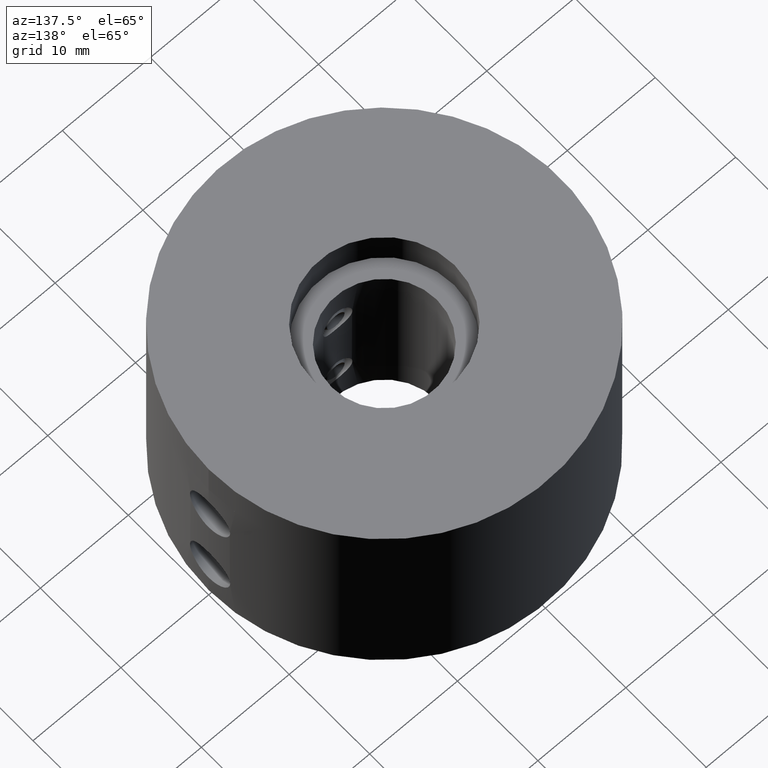
[diagram: clean part render]
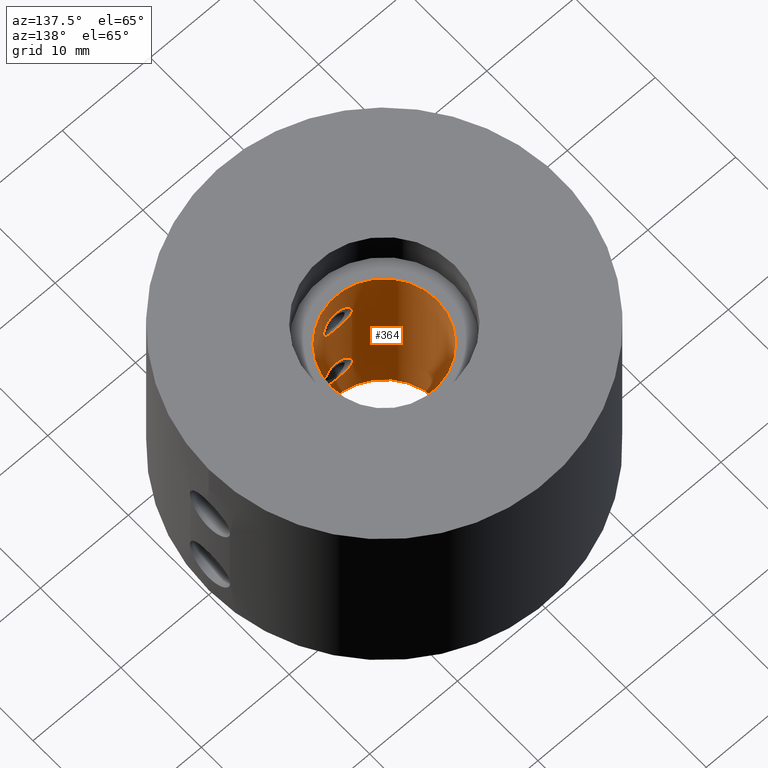
[diagram: same view with one face highlighted and labeled with its STEP entity id]
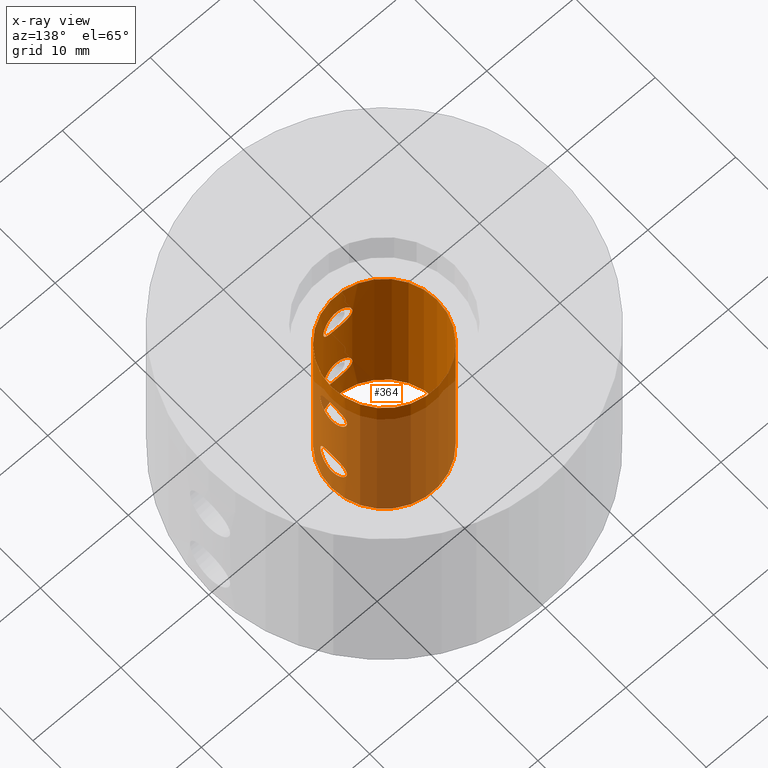
[diagram: x-ray of the same camera — body ghosted, the highlighted face saturated]
A machine part, auxiliary view. The second image highlights one B-rep face of the part: STEP entity #364.
The next image is the same camera in x-ray: the body ghosted, the highlighted face saturated — about 46% of this face is hidden behind the body in this view.
In plain terms, the highlighted cylindrical surface (bore or boss wall) has radius 6 mm, axis along (-0, 0, -1).
Its self-contained STEP definition (entity closure, byte-faithful):
#364 = ADVANCED_FACE( '', ( #449, #450, #451, #452, #453, #454 ), #455, .F. );
#449 = FACE_BOUND( '', #621, .T. );
#450 = FACE_BOUND( '', #622, .T. );
#451 = FACE_BOUND( '', #623, .T. );
#452 = FACE_BOUND( '', #624, .T. );
#453 = FACE_OUTER_BOUND( '', #625, .T. );
#454 = FACE_OUTER_BOUND( '', #626, .T. );
#455 = CYLINDRICAL_SURFACE( '', #627, 6.00000000000000 );
#621 = EDGE_LOOP( '', ( #803 ) );
#622 = EDGE_LOOP( '', ( #804 ) );
#623 = EDGE_LOOP( '', ( #805 ) );
#624 = EDGE_LOOP( '', ( #806 ) );
#625 = EDGE_LOOP( '', ( #807 ) );
#626 = EDGE_LOOP( '', ( #808 ) );
#627 = AXIS2_PLACEMENT_3D( '', #809, #810, #811 );
#803 = ORIENTED_EDGE( '', *, *, #1196, .T. );
#804 = ORIENTED_EDGE( '', *, *, #1197, .T. );
#805 = ORIENTED_EDGE( '', *, *, #1198, .T. );
#806 = ORIENTED_EDGE( '', *, *, #1199, .T. );
#807 = ORIENTED_EDGE( '', *, *, #1195, .F. );
#808 = ORIENTED_EDGE( '', *, *, #1194, .T. );
#809 = CARTESIAN_POINT( '', ( 0.000000000000000, 0.000000000000000, -34.0000000000000 ) );
#810 = DIRECTION( '', ( -0.000000000000000, 0.000000000000000, -1.00000000000000 ) );
#811 = DIRECTION( '', ( -1.00000000000000, 0.000000000000000, 0.000000000000000 ) );
#1194 = EDGE_CURVE( '', #1314, #1314, #1315, .T. );
#1195 = EDGE_CURVE( '', #1316, #1316, #1317, .T. );
#1196 = EDGE_CURVE( '', #1318, #1318, #1319, .T. );
#1197 = EDGE_CURVE( '', #1320, #1320, #1321, .T. );
#1198 = EDGE_CURVE( '', #1322, #1322, #1323, .T. );
#1199 = EDGE_CURVE( '', #1324, #1324, #1325, .T. );
#1314 = VERTEX_POINT( '', #1758 );
#1315 = CIRCLE( '', #1759, 6.00000000000000 );
#1316 = VERTEX_POINT( '', #1760 );
#1317 = CIRCLE( '', #1761, 6.00000000000000 );
#1318 = VERTEX_POINT( '', #1762 );
#1319 = B_SPLINE_CURVE_WITH_KNOTS( '', 3, ( #1763, #1764, #1765, #1766, #1767, #1768, #1769, #1770, #1771, #1772, #1773, #1774, #1775, #1776, #1777, #1778, #1779, #1780, #1781, #1782, #1783, #1784, #1785, #1786, #1787, #1788, #1789, #1790, #1791, #1792, #1793, #1794, #1795, #1796, #1797, #1798, #1799, #1800, #1801, #1802, #1803, #1804, #1805, #1806, #1807, #1808, #1809, #1810, #1811, #1812, #1813, #1814, #1815, #1816 ), .UNSPECIFIED., .T., .F., ( 2, 2, 2, 2, 2, 2, 2, 2, 2, 2, 2, 2, 2, 2, 2, 2, 2, 2, 2, 2, 2, 2, 2, 2, 2, 2, 2, 2, 2 ), ( -0.000323935350065547, 0.000000000000000, 0.000323935350065544, 0.000647870700131088, 0.000971806050196631, 0.00129574140026218, 0.00194361210039326, 0.00259148280052435, 0.00291541815058990, 0.00323935350065544, 0.00388722420078653, 0.00421115955085208, 0.00453509490091762, 0.00485903025098317, 0.00518296560104872, 0.00583083630117980, 0.00615477165124534, 0.00647870700131089, 0.00680264235137643, 0.00712657770144197, 0.00745051305150751, 0.00777444840157305, 0.00809838375163859, 0.00842231910170413, 0.00907018980183522, 0.00971806050196630, 0.0100419958520319, 0.0103659312020974, 0.0106898665521629 ), .UNSPECIFIED. );
#1320 = VERTEX_POINT( '', #1817 );
#1321 = B_SPLINE_CURVE_WITH_KNOTS( '', 3, ( #1818, #1819, #1820, #1821, #1822, #1823, #1824, #1825, #1826, #1827, #1828, #1829, #1830, #1831, #1832, #1833, #1834, #1835, #1836, #1837, #1838, #1839, #1840, #1841, #1842, #1843, #1844, #1845, #1846, #1847, #1848, #1849, #1850, #1851, #1852, #1853, #1854, #1855, #1856, #1857, #1858, #1859, #1860, #1861, #1862, #1863, #1864, #1865, #1866, #1867, #1868, #1869, #1870, #1871 ), .UNSPECIFIED., .T., .F., ( 2, 2, 2, 2, 2, 2, 2, 2, 2, 2, 2, 2, 2, 2, 2, 2, 2, 2, 2, 2, 2, 2, 2, 2, 2, 2, 2, 2, 2 ), ( -0.000323935350065545, 0.000000000000000, 0.000323935350065544, 0.000647870700131088, 0.000971806050196632, 0.00129574140026218, 0.00194361210039326, 0.00259148280052435, 0.00291541815058990, 0.00323935350065544, 0.00388722420078653, 0.00421115955085207, 0.00453509490091762, 0.00485903025098317, 0.00518296560104872, 0.00583083630117980, 0.00615477165124534, 0.00647870700131089, 0.00680264235137643, 0.00712657770144197, 0.00745051305150751, 0.00777444840157305, 0.00809838375163859, 0.00842231910170414, 0.00907018980183522, 0.00971806050196630, 0.0100419958520318, 0.0103659312020974, 0.0106898665521629 ), .UNSPECIFIED. );
#1322 = VERTEX_POINT( '', #1872 );
#1323 = B_SPLINE_CURVE_WITH_KNOTS( '', 3, ( #1873, #1874, #1875, #1876, #1877, #1878, #1879, #1880, #1881, #1882, #1883, #1884, #1885, #1886, #1887, #1888, #1889, #1890, #1891, #1892, #1893, #1894, #1895, #1896, #1897, #1898, #1899, #1900, #1901, #1902, #1903, #1904, #1905, #1906, #1907, #1908, #1909, #1910, #1911, #1912, #1913, #1914, #1915, #1916, #1917, #1918, #1919, #1920, #1921, #1922, #1923, #1924, #1925, #1926 ), .UNSPECIFIED., .T., .F., ( 2, 2, 2, 2, 2, 2, 2, 2, 2, 2, 2, 2, 2, 2, 2, 2, 2, 2, 2, 2, 2, 2, 2, 2, 2, 2, 2, 2, 2 ), ( -0.000323935350065547, 0.000000000000000, 0.000323935350065543, 0.000647870700131086, 0.000971806050196629, 0.00129574140026217, 0.00194361210039326, 0.00259148280052434, 0.00291541815058989, 0.00323935350065543, 0.00388722420078652, 0.00421115955085206, 0.00453509490091761, 0.00485903025098316, 0.00518296560104870, 0.00583083630117979, 0.00615477165124533, 0.00647870700131087, 0.00680264235137641, 0.00712657770144196, 0.00745051305150750, 0.00777444840157304, 0.00809838375163858, 0.00842231910170412, 0.00907018980183521, 0.00971806050196629, 0.0100419958520318, 0.0103659312020974, 0.0106898665521629 ), .UNSPECIFIED. );
#1324 = VERTEX_POINT( '', #1927 );
#1325 = B_SPLINE_CURVE_WITH_KNOTS( '', 3, ( #1928, #1929, #1930, #1931, #1932, #1933, #1934, #1935, #1936, #1937, #1938, #1939, #1940, #1941, #1942, #1943, #1944, #1945, #1946, #1947, #1948, #1949, #1950, #1951, #1952, #1953, #1954, #1955, #1956, #1957, #1958, #1959, #1960, #1961, #1962, #1963, #1964, #1965, #1966, #1967, #1968, #1969, #1970, #1971, #1972, #1973, #1974, #1975, #1976, #1977, #1978, #1979, #1980, #1981 ), .UNSPECIFIED., .T., .F., ( 2, 2, 2, 2, 2, 2, 2, 2, 2, 2, 2, 2, 2, 2, 2, 2, 2, 2, 2, 2, 2, 2, 2, 2, 2, 2, 2, 2, 2 ), ( -0.000323935350065546, 0.000000000000000, 0.000323935350065543, 0.000647870700131087, 0.000971806050196630, 0.00129574140026217, 0.00194361210039326, 0.00259148280052435, 0.00291541815058989, 0.00323935350065543, 0.00388722420078652, 0.00421115955085207, 0.00453509490091761, 0.00485903025098316, 0.00518296560104871, 0.00583083630117979, 0.00615477165124533, 0.00647870700131087, 0.00680264235137642, 0.00712657770144196, 0.00745051305150750, 0.00777444840157304, 0.00809838375163859, 0.00842231910170413, 0.00907018980183521, 0.00971806050196629, 0.0100419958520318, 0.0103659312020974, 0.0106898665521629 ), .UNSPECIFIED. );
#1758 = CARTESIAN_POINT( '', ( 6.00000000000000, 0.000000000000000, -14.0000000000000 ) );
#1759 = AXIS2_PLACEMENT_3D( '', #2326, #2327, #2328 );
#1760 = CARTESIAN_POINT( '', ( 6.00000000000000, 0.000000000000000, -34.0000000000000 ) );
#1761 = AXIS2_PLACEMENT_3D( '', #2329, #2330, #2331 );
#1762 = CARTESIAN_POINT( '', ( 1.65000000000000, -5.76866535690882, -19.0000000000000 ) );
#1763 = CARTESIAN_POINT( '', ( 1.65000000000000, -5.76866535690882, -19.1095768717296 ) );
#1764 = CARTESIAN_POINT( '', ( 1.65000000000000, -5.76866535690882, -18.8904231282704 ) );
#1765 = CARTESIAN_POINT( '', ( 1.63919389393258, -5.77178692553713, -18.7827886771317 ) );
#1766 = CARTESIAN_POINT( '', ( 1.59695842463832, -5.78361519515985, -18.5712096425236 ) );
#1767 = CARTESIAN_POINT( '', ( 1.56498242243479, -5.79246668721539, -18.4661415421547 ) );
#1768 = CARTESIAN_POINT( '', ( 1.48199675075463, -5.81425196700166, -18.2666102902988 ) );
#1769 = CARTESIAN_POINT( '', ( 1.43129370083876, -5.82710716480738, -18.1720594771203 ) );
#1770 = CARTESIAN_POINT( '', ( 1.31159239112937, -5.85521177821450, -17.9931174015713 ) );
#1771 = CARTESIAN_POINT( '', ( 1.24230218743372, -5.87048905045125, -17.9088330923316 ) );
#1772 = CARTESIAN_POINT( '', ( 1.01518734328448, -5.91550676810682, -17.6817684424927 ) );
#1773 = CARTESIAN_POINT( '', ( 0.831967661642737, -5.94538560599344, -17.5590035254572 ) );
#1774 = CARTESIAN_POINT( '', ( 0.435298811500734, -5.98751159820834, -17.3940249147729 ) );
#1775 = CARTESIAN_POINT( '', ( 0.217458792416844, -5.99996194295814, -17.3501383892691 ) );
#1776 = CARTESIAN_POINT( '', ( -0.107150502404171, -6.00001889002617, -17.3499313089828 ) );
#1777 = CARTESIAN_POINT( '', ( -0.217085237680214, -5.99701162357613, -17.3607733527023 ) );
#1778 = CARTESIAN_POINT( '', ( -0.429139169098673, -5.98557549340672, -17.4031187974133 ) );
#1779 = CARTESIAN_POINT( '', ( -0.532270186936324, -5.97719397143362, -17.4344440442981 ) );
#1780 = CARTESIAN_POINT( '', ( -0.832965771441652, -5.94531793260722, -17.5592446311238 ) );
#1781 = CARTESIAN_POINT( '', ( -1.01424259936861, -5.91569984907431, -17.6807674334177 ) );
#1782 = CARTESIAN_POINT( '', ( -1.24309870350946, -5.87032825334419, -17.9096577293759 ) );
#1783 = CARTESIAN_POINT( '', ( -1.31099505183364, -5.85534412466292, -17.9923784239423 ) );
#1784 = CARTESIAN_POINT( '', ( -1.43043473203242, -5.82731664847142, -18.1706232798875 ) );
#1785 = CARTESIAN_POINT( '', ( -1.48228092935193, -5.81417841894113, -18.2672322755075 ) );
#1786 = CARTESIAN_POINT( '', ( -1.56497552760715, -5.79246743959704, -18.4661864655434 ) );
#1787 = CARTESIAN_POINT( '', ( -1.59641696368705, -5.78376555364898, -18.5690473948996 ) );
#1788 = CARTESIAN_POINT( '', ( -1.63909713664893, -5.77181528447971, -18.7817619501098 ) );
#1789 = CARTESIAN_POINT( '', ( -1.64995316210289, -5.76867875385901, -18.8912922550960 ) );
#1790 = CARTESIAN_POINT( '', ( -1.65009321330336, -5.76863869529379, -19.2152757096192 ) );
#1791 = CARTESIAN_POINT( '', ( -1.60655563384624, -5.78154398363783, -19.4333770251339 ) );
#1792 = CARTESIAN_POINT( '', ( -1.48283844117315, -5.81403544168976, -19.7316244391889 ) );
#1793 = CARTESIAN_POINT( '', ( -1.43115085401429, -5.82714196640622, -19.8281787050114 ) );
#1794 = CARTESIAN_POINT( '', ( -1.31150132285194, -5.85523189495993, -20.0069940489088 ) );
#1795 = CARTESIAN_POINT( '', ( -1.24360763407258, -5.87021724312962, -20.0897349833717 ) );
#1796 = CARTESIAN_POINT( '', ( -1.09151774345873, -5.90038977058081, -20.2420431945880 ) );
#1797 = CARTESIAN_POINT( '', ( -1.00730510853515, -5.91552608511525, -20.3112260957433 ) );
#1798 = CARTESIAN_POINT( '', ( -0.829289174767598, -5.94309615520170, -20.4304743690303 ) );
#1799 = CARTESIAN_POINT( '', ( -0.734694361199133, -5.95570704049959, -20.4814128514123 ) );
#1800 = CARTESIAN_POINT( '', ( -0.533617604271758, -5.97707908673170, -20.5651236670367 ) );
#1801 = CARTESIAN_POINT( '', ( -0.430116319728834, -5.98549913435801, -20.5965952118489 ) );
#1802 = CARTESIAN_POINT( '', ( -0.218766488052844, -5.99694431853445, -20.6389806413441 ) );
#1803 = CARTESIAN_POINT( '', ( -0.109464418864110, -5.99998786257991, -20.6499558639236 ) );
#1804 = CARTESIAN_POINT( '', ( 0.108129790222904, -6.00001206320203, -20.6500438661925 ) );
#1805 = CARTESIAN_POINT( '', ( 0.215587923675145, -5.99706770970419, -20.6394309776566 ) );
#1806 = CARTESIAN_POINT( '', ( 0.427878087466105, -5.98566784994603, -20.5972264791197 ) );
#1807 = CARTESIAN_POINT( '', ( 0.533211442925514, -5.97709726532556, -20.5651792509207 ) );
#1808 = CARTESIAN_POINT( '', ( 0.831630807606231, -5.94545329205068, -20.4412814858166 ) );
#1809 = CARTESIAN_POINT( '', ( 1.01475074386131, -5.91558171370074, -20.3185555969499 ) );
#1810 = CARTESIAN_POINT( '', ( 1.31757760919286, -5.85557984553121, -20.0160202646446 ) );
#1811 = CARTESIAN_POINT( '', ( 1.44031263129257, -5.82518892771716, -19.8332734929537 ) );
#1812 = CARTESIAN_POINT( '', ( 1.56449956372118, -5.79259637338742, -19.5351891372181 ) );
#1813 = CARTESIAN_POINT( '', ( 1.59668527874201, -5.78369114005916, -19.4299209247836 ) );
#1814 = CARTESIAN_POINT( '', ( 1.63919009974679, -5.77178853561376, -19.2174665441173 ) );
#1815 = CARTESIAN_POINT( '', ( 1.65000000000000, -5.76866535690882, -19.1095768717296 ) );
#1816 = CARTESIAN_POINT( '', ( 1.65000000000000, -5.76866535690882, -18.8904231282704 ) );
#1817 = CARTESIAN_POINT( '', ( 5.76866535690882, 1.65000000000000, -19.0000000000000 ) );
#1818 = CARTESIAN_POINT( '', ( 5.76866535690882, 1.65000000000000, -19.1095768717296 ) );
#1819 = CARTESIAN_POINT( '', ( 5.76866535690882, 1.65000000000000, -18.8904231282704 ) );
#1820 = CARTESIAN_POINT( '', ( 5.77178692553713, 1.63919389393258, -18.7827886771317 ) );
#1821 = CARTESIAN_POINT( '', ( 5.78361519515985, 1.59695842463832, -18.5712096425236 ) );
#1822 = CARTESIAN_POINT( '', ( 5.79246668721539, 1.56498242243479, -18.4661415421547 ) );
#1823 = CARTESIAN_POINT( '', ( 5.81425196700166, 1.48199675075463, -18.2666102902988 ) );
#1824 = CARTESIAN_POINT( '', ( 5.82710716480738, 1.43129370083876, -18.1720594771203 ) );
#1825 = CARTESIAN_POINT( '', ( 5.85521177821450, 1.31159239112937, -17.9931174015713 ) );
#1826 = CARTESIAN_POINT( '', ( 5.87048905045125, 1.24230218743372, -17.9088330923316 ) );
#1827 = CARTESIAN_POINT( '', ( 5.91550676810682, 1.01518734328448, -17.6817684424927 ) );
#1828 = CARTESIAN_POINT( '', ( 5.94538560599344, 0.831967661642737, -17.5590035254572 ) );
#1829 = CARTESIAN_POINT( '', ( 5.98751159820834, 0.435298811500734, -17.3940249147729 ) );
#1830 = CARTESIAN_POINT( '', ( 5.99996194295814, 0.217458792416845, -17.3501383892691 ) );
#1831 = CARTESIAN_POINT( '', ( 6.00001889002617, -0.107150502404170, -17.3499313089828 ) );
#1832 = CARTESIAN_POINT( '', ( 5.99701162357613, -0.217085237680213, -17.3607733527023 ) );
#1833 = CARTESIAN_POINT( '', ( 5.98557549340672, -0.429139169098672, -17.4031187974133 ) );
#1834 = CARTESIAN_POINT( '', ( 5.97719397143362, -0.532270186936323, -17.4344440442982 ) );
#1835 = CARTESIAN_POINT( '', ( 5.94531793260722, -0.832965771441651, -17.5592446311238 ) );
#1836 = CARTESIAN_POINT( '', ( 5.91569984907431, -1.01424259936861, -17.6807674334177 ) );
#1837 = CARTESIAN_POINT( '', ( 5.87032825334420, -1.24309870350946, -17.9096577293759 ) );
#1838 = CARTESIAN_POINT( '', ( 5.85534412466293, -1.31099505183364, -17.9923784239423 ) );
#1839 = CARTESIAN_POINT( '', ( 5.82731664847143, -1.43043473203242, -18.1706232798875 ) );
#1840 = CARTESIAN_POINT( '', ( 5.81417841894113, -1.48228092935193, -18.2672322755075 ) );
#1841 = CARTESIAN_POINT( '', ( 5.79246743959704, -1.56497552760715, -18.4661864655434 ) );
#1842 = CARTESIAN_POINT( '', ( 5.78376555364899, -1.59641696368705, -18.5690473948996 ) );
#1843 = CARTESIAN_POINT( '', ( 5.77181528447971, -1.63909713664893, -18.7817619501098 ) );
#1844 = CARTESIAN_POINT( '', ( 5.76867875385901, -1.64995316210289, -18.8912922550960 ) );
#1845 = CARTESIAN_POINT( '', ( 5.76863869529379, -1.65009321330336, -19.2152757096192 ) );
#1846 = CARTESIAN_POINT( '', ( 5.78154398363783, -1.60655563384624, -19.4333770251339 ) );
#1847 = CARTESIAN_POINT( '', ( 5.81403544168976, -1.48283844117315, -19.7316244391889 ) );
#1848 = CARTESIAN_POINT( '', ( 5.82714196640622, -1.43115085401429, -19.8281787050114 ) );
#1849 = CARTESIAN_POINT( '', ( 5.85523189495993, -1.31150132285195, -20.0069940489088 ) );
#1850 = CARTESIAN_POINT( '', ( 5.87021724312962, -1.24360763407258, -20.0897349833717 ) );
#1851 = CARTESIAN_POINT( '', ( 5.90038977058081, -1.09151774345873, -20.2420431945880 ) );
#1852 = CARTESIAN_POINT( '', ( 5.91552608511524, -1.00730510853515, -20.3112260957433 ) );
#1853 = CARTESIAN_POINT( '', ( 5.94309615520170, -0.829289174767601, -20.4304743690303 ) );
#1854 = CARTESIAN_POINT( '', ( 5.95570704049959, -0.734694361199137, -20.4814128514123 ) );
#1855 = CARTESIAN_POINT( '', ( 5.97707908673170, -0.533617604271761, -20.5651236670367 ) );
#1856 = CARTESIAN_POINT( '', ( 5.98549913435801, -0.430116319728836, -20.5965952118489 ) );
#1857 = CARTESIAN_POINT( '', ( 5.99694431853445, -0.218766488052845, -20.6389806413441 ) );
#1858 = CARTESIAN_POINT( '', ( 5.99998786257991, -0.109464418864112, -20.6499558639236 ) );
#1859 = CARTESIAN_POINT( '', ( 6.00001206320203, 0.108129790222902, -20.6500438661925 ) );
#1860 = CARTESIAN_POINT( '', ( 5.99706770970419, 0.215587923675143, -20.6394309776566 ) );
#1861 = CARTESIAN_POINT( '', ( 5.98566784994603, 0.427878087466105, -20.5972264791197 ) );
#1862 = CARTESIAN_POINT( '', ( 5.97709726532556, 0.533211442925514, -20.5651792509207 ) );
#1863 = CARTESIAN_POINT( '', ( 5.94545329205067, 0.831630807606230, -20.4412814858166 ) );
#1864 = CARTESIAN_POINT( '', ( 5.91558171370074, 1.01475074386131, -20.3185555969499 ) );
#1865 = CARTESIAN_POINT( '', ( 5.85557984553120, 1.31757760919285, -20.0160202646446 ) );
#1866 = CARTESIAN_POINT( '', ( 5.82518892771715, 1.44031263129257, -19.8332734929537 ) );
#1867 = CARTESIAN_POINT( '', ( 5.79259637338742, 1.56449956372118, -19.5351891372181 ) );
#1868 = CARTESIAN_POINT( '', ( 5.78369114005916, 1.59668527874201, -19.4299209247836 ) );
#1869 = CARTESIAN_POINT( '', ( 5.77178853561376, 1.63919009974680, -19.2174665441173 ) );
#1870 = CARTESIAN_POINT( '', ( 5.76866535690882, 1.65000000000000, -19.1095768717296 ) );
#1871 = CARTESIAN_POINT( '', ( 5.76866535690882, 1.65000000000000, -18.8904231282704 ) );
#1872 = CARTESIAN_POINT( '', ( 1.65000000000000, -5.76866535690882, -29.0000000000000 ) );
#1873 = CARTESIAN_POINT( '', ( 1.65000000000000, -5.76866535690882, -29.1095768717296 ) );
#1874 = CARTESIAN_POINT( '', ( 1.65000000000000, -5.76866535690882, -28.8904231282704 ) );
#1875 = CARTESIAN_POINT( '', ( 1.63919389393258, -5.77178692553713, -28.7827886771317 ) );
#1876 = CARTESIAN_POINT( '', ( 1.59695842463832, -5.78361519515985, -28.5712096425236 ) );
#1877 = CARTESIAN_POINT( '', ( 1.56498242243479, -5.79246668721539, -28.4661415421547 ) );
#1878 = CARTESIAN_POINT( '', ( 1.48199675075463, -5.81425196700165, -28.2666102902988 ) );
#1879 = CARTESIAN_POINT( '', ( 1.43129370083876, -5.82710716480738, -28.1720594771203 ) );
#1880 = CARTESIAN_POINT( '', ( 1.31159239112937, -5.85521177821449, -27.9931174015713 ) );
#1881 = CARTESIAN_POINT( '', ( 1.24230218743372, -5.87048905045125, -27.9088330923316 ) );
#1882 = CARTESIAN_POINT( '', ( 1.01518734328448, -5.91550676810682, -27.6817684424927 ) );
#1883 = CARTESIAN_POINT( '', ( 0.831967661642740, -5.94538560599344, -27.5590035254572 ) );
#1884 = CARTESIAN_POINT( '', ( 0.435298811500738, -5.98751159820833, -27.3940249147729 ) );
#1885 = CARTESIAN_POINT( '', ( 0.217458792416847, -5.99996194295814, -27.3501383892691 ) );
#1886 = CARTESIAN_POINT( '', ( -0.107150502404167, -6.00001889002617, -27.3499313089828 ) );
#1887 = CARTESIAN_POINT( '', ( -0.217085237680212, -5.99701162357613, -27.3607733527023 ) );
#1888 = CARTESIAN_POINT( '', ( -0.429139169098670, -5.98557549340672, -27.4031187974133 ) );
#1889 = CARTESIAN_POINT( '', ( -0.532270186936320, -5.97719397143362, -27.4344440442981 ) );
#1890 = CARTESIAN_POINT( '', ( -0.832965771441648, -5.94531793260722, -27.5592446311237 ) );
#1891 = CARTESIAN_POINT( '', ( -1.01424259936861, -5.91569984907432, -27.6807674334177 ) );
#1892 = CARTESIAN_POINT( '', ( -1.24309870350945, -5.87032825334419, -27.9096577293759 ) );
#1893 = CARTESIAN_POINT( '', ( -1.31099505183364, -5.85534412466292, -27.9923784239423 ) );
#1894 = CARTESIAN_POINT( '', ( -1.43043473203242, -5.82731664847143, -28.1706232798875 ) );
#1895 = CARTESIAN_POINT( '', ( -1.48228092935193, -5.81417841894113, -28.2672322755075 ) );
#1896 = CARTESIAN_POINT( '', ( -1.56497552760715, -5.79246743959704, -28.4661864655434 ) );
#1897 = CARTESIAN_POINT( '', ( -1.59641696368705, -5.78376555364899, -28.5690473948996 ) );
#1898 = CARTESIAN_POINT( '', ( -1.63909713664893, -5.77181528447971, -28.7817619501098 ) );
#1899 = CARTESIAN_POINT( '', ( -1.64995316210289, -5.76867875385901, -28.8912922550960 ) );
#1900 = CARTESIAN_POINT( '', ( -1.65009321330336, -5.76863869529379, -29.2152757096192 ) );
#1901 = CARTESIAN_POINT( '', ( -1.60655563384624, -5.78154398363783, -29.4333770251339 ) );
#1902 = CARTESIAN_POINT( '', ( -1.48283844117316, -5.81403544168976, -29.7316244391889 ) );
#1903 = CARTESIAN_POINT( '', ( -1.43115085401429, -5.82714196640622, -29.8281787050114 ) );
#1904 = CARTESIAN_POINT( '', ( -1.31150132285195, -5.85523189495992, -30.0069940489088 ) );
#1905 = CARTESIAN_POINT( '', ( -1.24360763407259, -5.87021724312962, -30.0897349833717 ) );
#1906 = CARTESIAN_POINT( '', ( -1.09151774345874, -5.90038977058081, -30.2420431945880 ) );
#1907 = CARTESIAN_POINT( '', ( -1.00730510853515, -5.91552608511525, -30.3112260957433 ) );
#1908 = CARTESIAN_POINT( '', ( -0.829289174767603, -5.94309615520170, -30.4304743690303 ) );
#1909 = CARTESIAN_POINT( '', ( -0.734694361199140, -5.95570704049959, -30.4814128514123 ) );
#1910 = CARTESIAN_POINT( '', ( -0.533617604271765, -5.97707908673170, -30.5651236670367 ) );
#1911 = CARTESIAN_POINT( '', ( -0.430116319728840, -5.98549913435801, -30.5965952118488 ) );
#1912 = CARTESIAN_POINT( '', ( -0.218766488052850, -5.99694431853445, -30.6389806413441 ) );
#1913 = CARTESIAN_POINT( '', ( -0.109464418864118, -5.99998786257991, -30.6499558639236 ) );
#1914 = CARTESIAN_POINT( '', ( 0.108129790222898, -6.00001206320203, -30.6500438661925 ) );
#1915 = CARTESIAN_POINT( '', ( 0.215587923675137, -5.99706770970419, -30.6394309776566 ) );
#1916 = CARTESIAN_POINT( '', ( 0.427878087466099, -5.98566784994603, -30.5972264791197 ) );
#1917 = CARTESIAN_POINT( '', ( 0.533211442925507, -5.97709726532556, -30.5651792509207 ) );
#1918 = CARTESIAN_POINT( '', ( 0.831630807606225, -5.94545329205068, -30.4412814858166 ) );
#1919 = CARTESIAN_POINT( '', ( 1.01475074386130, -5.91558171370074, -30.3185555969499 ) );
#1920 = CARTESIAN_POINT( '', ( 1.31757760919285, -5.85557984553120, -30.0160202646446 ) );
#1921 = CARTESIAN_POINT( '', ( 1.44031263129257, -5.82518892771716, -29.8332734929537 ) );
#1922 = CARTESIAN_POINT( '', ( 1.56449956372118, -5.79259637338742, -29.5351891372181 ) );
#1923 = CARTESIAN_POINT( '', ( 1.59668527874201, -5.78369114005916, -29.4299209247836 ) );
#1924 = CARTESIAN_POINT( '', ( 1.63919009974679, -5.77178853561376, -29.2174665441173 ) );
#1925 = CARTESIAN_POINT( '', ( 1.65000000000000, -5.76866535690882, -29.1095768717296 ) );
#1926 = CARTESIAN_POINT( '', ( 1.65000000000000, -5.76866535690882, -28.8904231282704 ) );
#1927 = CARTESIAN_POINT( '', ( 5.76866535690882, 1.65000000000000, -29.0000000000000 ) );
#1928 = CARTESIAN_POINT( '', ( 5.76866535690882, 1.65000000000000, -29.1095768717296 ) );
#1929 = CARTESIAN_POINT( '', ( 5.76866535690882, 1.65000000000000, -28.8904231282704 ) );
#1930 = CARTESIAN_POINT( '', ( 5.77178692553713, 1.63919389393258, -28.7827886771317 ) );
#1931 = CARTESIAN_POINT( '', ( 5.78361519515985, 1.59695842463832, -28.5712096425236 ) );
#1932 = CARTESIAN_POINT( '', ( 5.79246668721539, 1.56498242243479, -28.4661415421547 ) );
#1933 = CARTESIAN_POINT( '', ( 5.81425196700165, 1.48199675075463, -28.2666102902988 ) );
#1934 = CARTESIAN_POINT( '', ( 5.82710716480738, 1.43129370083876, -28.1720594771203 ) );
#1935 = CARTESIAN_POINT( '', ( 5.85521177821450, 1.31159239112937, -27.9931174015713 ) );
#1936 = CARTESIAN_POINT( '', ( 5.87048905045125, 1.24230218743372, -27.9088330923316 ) );
#1937 = CARTESIAN_POINT( '', ( 5.91550676810682, 1.01518734328448, -27.6817684424927 ) );
#1938 = CARTESIAN_POINT( '', ( 5.94538560599344, 0.831967661642739, -27.5590035254572 ) );
#1939 = CARTESIAN_POINT( '', ( 5.98751159820833, 0.435298811500737, -27.3940249147729 ) );
#1940 = CARTESIAN_POINT( '', ( 5.99996194295814, 0.217458792416846, -27.3501383892691 ) );
#1941 = CARTESIAN_POINT( '', ( 6.00001889002617, -0.107150502404168, -27.3499313089828 ) );
#1942 = CARTESIAN_POINT( '', ( 5.99701162357613, -0.217085237680212, -27.3607733527023 ) );
#1943 = CARTESIAN_POINT( '', ( 5.98557549340672, -0.429139169098670, -27.4031187974133 ) );
#1944 = CARTESIAN_POINT( '', ( 5.97719397143362, -0.532270186936321, -27.4344440442981 ) );
#1945 = CARTESIAN_POINT( '', ( 5.94531793260722, -0.832965771441647, -27.5592446311237 ) );
#1946 = CARTESIAN_POINT( '', ( 5.91569984907432, -1.01424259936861, -27.6807674334177 ) );
#1947 = CARTESIAN_POINT( '', ( 5.87032825334419, -1.24309870350945, -27.9096577293759 ) );
#1948 = CARTESIAN_POINT( '', ( 5.85534412466293, -1.31099505183364, -27.9923784239423 ) );
#1949 = CARTESIAN_POINT( '', ( 5.82731664847143, -1.43043473203242, -28.1706232798875 ) );
#1950 = CARTESIAN_POINT( '', ( 5.81417841894113, -1.48228092935192, -28.2672322755075 ) );
#1951 = CARTESIAN_POINT( '', ( 5.79246743959704, -1.56497552760715, -28.4661864655434 ) );
#1952 = CARTESIAN_POINT( '', ( 5.78376555364899, -1.59641696368705, -28.5690473948996 ) );
#1953 = CARTESIAN_POINT( '', ( 5.77181528447971, -1.63909713664893, -28.7817619501098 ) );
#1954 = CARTESIAN_POINT( '', ( 5.76867875385901, -1.64995316210289, -28.8912922550960 ) );
#1955 = CARTESIAN_POINT( '', ( 5.76863869529379, -1.65009321330336, -29.2152757096192 ) );
#1956 = CARTESIAN_POINT( '', ( 5.78154398363783, -1.60655563384625, -29.4333770251339 ) );
#1957 = CARTESIAN_POINT( '', ( 5.81403544168976, -1.48283844117316, -29.7316244391889 ) );
#1958 = CARTESIAN_POINT( '', ( 5.82714196640622, -1.43115085401429, -29.8281787050114 ) );
#1959 = CARTESIAN_POINT( '', ( 5.85523189495993, -1.31150132285195, -30.0069940489088 ) );
#1960 = CARTESIAN_POINT( '', ( 5.87021724312962, -1.24360763407258, -30.0897349833717 ) );
#1961 = CARTESIAN_POINT( '', ( 5.90038977058081, -1.09151774345873, -30.2420431945881 ) );
#1962 = CARTESIAN_POINT( '', ( 5.91552608511525, -1.00730510853515, -30.3112260957433 ) );
#1963 = CARTESIAN_POINT( '', ( 5.94309615520170, -0.829289174767603, -30.4304743690303 ) );
#1964 = CARTESIAN_POINT( '', ( 5.95570704049959, -0.734694361199140, -30.4814128514123 ) );
#1965 = CARTESIAN_POINT( '', ( 5.97707908673170, -0.533617604271765, -30.5651236670367 ) );
#1966 = CARTESIAN_POINT( '', ( 5.98549913435801, -0.430116319728840, -30.5965952118489 ) );
#1967 = CARTESIAN_POINT( '', ( 5.99694431853445, -0.218766488052849, -30.6389806413441 ) );
#1968 = CARTESIAN_POINT( '', ( 5.99998786257991, -0.109464418864119, -30.6499558639236 ) );
#1969 = CARTESIAN_POINT( '', ( 6.00001206320203, 0.108129790222899, -30.6500438661925 ) );
#1970 = CARTESIAN_POINT( '', ( 5.99706770970419, 0.215587923675137, -30.6394309776567 ) );
#1971 = CARTESIAN_POINT( '', ( 5.98566784994604, 0.427878087466099, -30.5972264791197 ) );
#1972 = CARTESIAN_POINT( '', ( 5.97709726532556, 0.533211442925507, -30.5651792509207 ) );
#1973 = CARTESIAN_POINT( '', ( 5.94545329205068, 0.831630807606226, -30.4412814858166 ) );
#1974 = CARTESIAN_POINT( '', ( 5.91558171370074, 1.01475074386130, -30.3185555969499 ) );
#1975 = CARTESIAN_POINT( '', ( 5.85557984553120, 1.31757760919285, -30.0160202646446 ) );
#1976 = CARTESIAN_POINT( '', ( 5.82518892771716, 1.44031263129256, -29.8332734929537 ) );
#1977 = CARTESIAN_POINT( '', ( 5.79259637338742, 1.56449956372118, -29.5351891372181 ) );
#1978 = CARTESIAN_POINT( '', ( 5.78369114005917, 1.59668527874201, -29.4299209247836 ) );
#1979 = CARTESIAN_POINT( '', ( 5.77178853561376, 1.63919009974679, -29.2174665441173 ) );
#1980 = CARTESIAN_POINT( '', ( 5.76866535690882, 1.65000000000000, -29.1095768717296 ) );
#1981 = CARTESIAN_POINT( '', ( 5.76866535690882, 1.65000000000000, -28.8904231282704 ) );
#2326 = CARTESIAN_POINT( '', ( 0.000000000000000, 0.000000000000000, -14.0000000000000 ) );
#2327 = DIRECTION( '', ( 0.000000000000000, -0.000000000000000, 1.00000000000000 ) );
#2328 = DIRECTION( '', ( 1.00000000000000, 0.000000000000000, 0.000000000000000 ) );
#2329 = CARTESIAN_POINT( '', ( 0.000000000000000, 0.000000000000000, -34.0000000000000 ) );
#2330 = DIRECTION( '', ( 0.000000000000000, -0.000000000000000, 1.00000000000000 ) );
#2331 = DIRECTION( '', ( 1.00000000000000, 0.000000000000000, 0.000000000000000 ) );